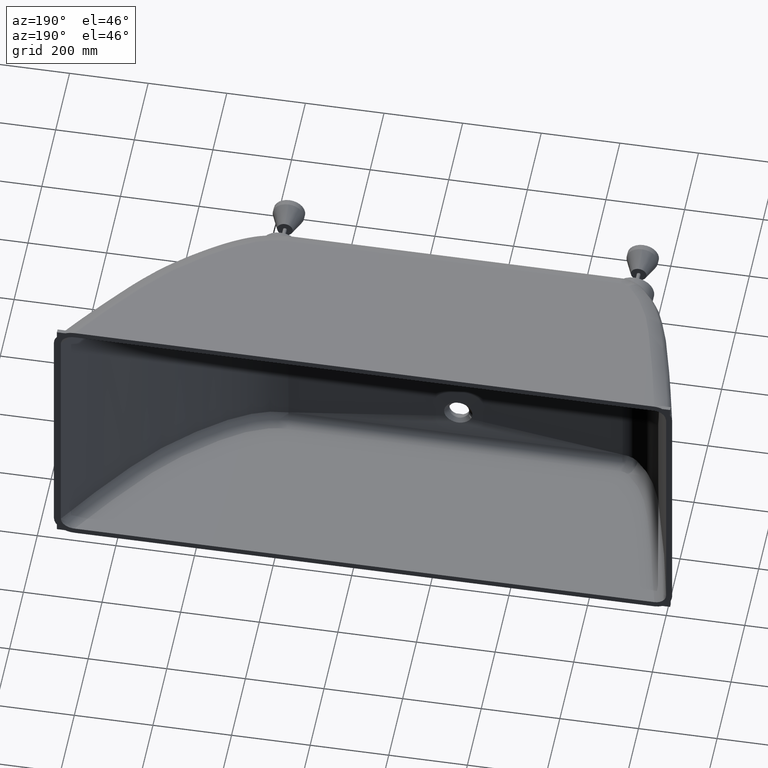
[diagram: clean part render]
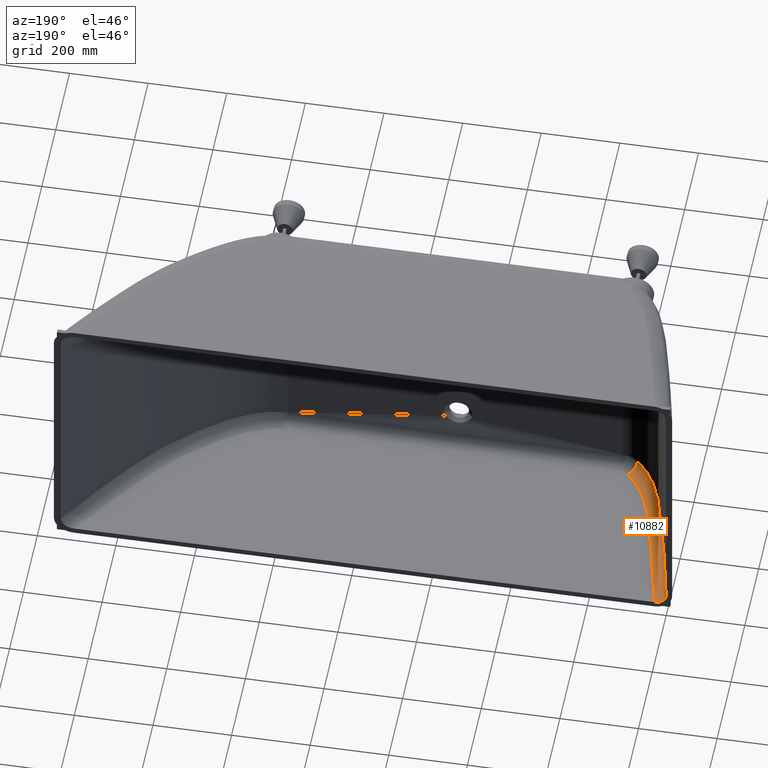
[diagram: same view with one face highlighted and labeled with its STEP entity id]
A machine part, auxiliary view. The second image highlights one B-rep face of the part: STEP entity #10882.
In plain terms, the highlighted face is a freeform B-spline surface patch.
Its self-contained STEP definition (entity closure, byte-faithful):
#12 = CARTESIAN_POINT ( 'NONE',  ( 29.06124112582564600, 6.949627220135910800, -0.2315507309366103500 ) ) ;
#93 = B_SPLINE_CURVE_WITH_KNOTS ( 'NONE', 3,
 ( #11761, #11773, #11728, #11719, #11706, #7785, #7612, #7523, #11695, #11679, #11667, #11649, #11640, #11619, #11607, #11583, #11567, #11539, #11523, #11492, #11476, #11453, #11438, #11417, #11398, #11348, #11321, #11300, #11255, #11233, #11214, #11181, #11161, #11133, #11117, #11093, #11072, #11050, #11036, #11009, #10995, #10953, #10926, #10909, #10893, #10877, #10859, #10840, #10822, #10812, #10795, #10771 ),
 .UNSPECIFIED., .F., .F.,
 ( 4, 2, 1, 2, 2, 2, 2, 2, 2, 2, 2, 2, 2, 2, 2, 2, 2, 2, 2, 2, 2, 2, 2, 1, 1, 1, 2, 4 ),
 ( -6.000000000020414300E-008, 0.003645714229937240200, 0.007291488459874480100, 0.01458303691974896700, 0.02916613383949794000, 0.05833232767899589100, 0.1166647153579917900, 0.1749971030369876200, 0.2041632968764856000, 0.2187463937962346200, 0.2333294907159835800, 0.2624956845554815000, 0.2916618783949795300, 0.3208280722344774600, 0.3281196206943519100, 0.3354111691542263600, 0.3499942660739753200, 0.4083266537529709500, 0.4229097506727199600, 0.4302012991325944700, 0.4374928475924690900, 0.4520759445122181600, 0.4593674929720927300, 0.4630132672020301200, 0.4648361543169987100, 0.4657475978744830500, 0.4662033196532251500, 0.4666590414319672400 ),
 .UNSPECIFIED. ) ;
#136 = ORIENTED_EDGE ( 'NONE', *, *, #3519, .T. ) ;
#139 = CARTESIAN_POINT ( 'NONE',  ( 29.16359142788229200, 6.369169812853092700, -0.2122107961924272500 ) ) ;
#504 = CARTESIAN_POINT ( 'NONE',  ( 6.286104489863160600, -2.331963371631408400E-014, 11.51206644044381000 ) ) ;
#542 = VERTEX_POINT ( 'NONE', #7703 ) ;
#1481 = CARTESIAN_POINT ( 'NONE',  ( 9.652136662136667800, -2.326655067058557400E-014, 7.956515564510484100 ) ) ;
#2171 = VERTEX_POINT ( 'NONE', #10638 ) ;
#2652 = CARTESIAN_POINT ( 'NONE',  ( 170.0829550049796800, -413.4335997468034000, 13.77496219332429400 ) ) ;
#2796 = CARTESIAN_POINT ( 'NONE',  ( 169.7615336672072000, -413.7905279511018600, 13.78685448394238500 ) ) ;
#2816 = CARTESIAN_POINT ( 'NONE',  ( 169.4340402407293900, -414.1537794874342400, 13.81071074918859100 ) ) ;
#2853 = CARTESIAN_POINT ( 'NONE',  ( 168.7844876258925500, -414.8733503187668800, 13.88186497782582600 ) ) ;
#2894 = CARTESIAN_POINT ( 'NONE',  ( 168.4605045897412200, -415.2318187508879500, 13.92916154082905100 ) ) ;
#2944 = CARTESIAN_POINT ( 'NONE',  ( 167.4909304415326700, -416.3032957328246700, 14.10605391662296500 ) ) ;
#3052 = CARTESIAN_POINT ( 'NONE',  ( 166.8477086622493700, -417.0123853744970600, 14.27056891212747700 ) ) ;
#3063 = CARTESIAN_POINT ( 'NONE',  ( 164.9276874093837400, -419.1238127535871200, 14.90561534658429500 ) ) ;
#3143 = CARTESIAN_POINT ( 'NONE',  ( 163.6915838983172200, -420.4762070688792100, 15.50621866368898900 ) ) ;
#3171 = B_SPLINE_CURVE_WITH_KNOTS ( 'NONE', 3,
 ( #9149, #9094, #10603, #10634, #10708, #11739, #11872, #11876, #11896, #11951, #10123, #5064, #1481, #11635, #504, #3566, #3569, #3576, #3595, #3608, #3613, #3626, #3645, #3659, #3662, #3671 ),
 .UNSPECIFIED., .F., .F.,
 ( 4, 2, 2, 2, 2, 2, 2, 2, 2, 2, 2, 2, 4 ),
 ( 0.0000000000000000000, 0.005873322736494580900, 0.008809984104741871300, 0.01174664547298916200, 0.01761996820948374300, 0.02055662957773103300, 0.02349329094597832300, 0.02936661368247290400, 0.03230327505072019800, 0.03523993641896747800, 0.03817659778721477200, 0.04111325915546205900, 0.04698658189195664700 ),
 .UNSPECIFIED. ) ;
#3219 = EDGE_CURVE ( 'NONE', #8986, #9749, #7212, .T. ) ;
#3224 = CARTESIAN_POINT ( 'NONE',  ( 161.9039288221237600, -422.4219915448069300, 16.66063932418334300 ) ) ;
#3350 = CARTESIAN_POINT ( 'NONE',  ( 161.3190188578675800, -423.0568915234407500, 17.08806642409510300 ) ) ;
#3519 = EDGE_CURVE ( 'NONE', #2171, #5766, #3727, .T. ) ;
#3547 = CARTESIAN_POINT ( 'NONE',  ( 160.1716216404392400, -424.2987570144589400, 18.02991570904437800 ) ) ;
#3566 = CARTESIAN_POINT ( 'NONE',  ( 4.615909835166254600, -2.334597304246820600E-014, 13.95331283943719900 ) ) ;
#3569 = CARTESIAN_POINT ( 'NONE',  ( 4.094456593670289900, -2.335419647137409800E-014, 14.80359034830803800 ) ) ;
#3576 = CARTESIAN_POINT ( 'NONE',  ( 3.148942615552957800, -2.336910742859868100E-014, 16.53400228089753900 ) ) ;
#3592 = CARTESIAN_POINT ( 'NONE',  ( 159.6068326375290400, -424.9081835730799000, 18.54709956161465100 ) ) ;
#3595 = CARTESIAN_POINT ( 'NONE',  ( 2.722057691625267200, -2.337583949495393600E-014, 17.41753869529055300 ) ) ;
#3608 = CARTESIAN_POINT ( 'NONE',  ( 1.958333018778263300, -2.338788359603731000E-014, 19.22059351883252300 ) ) ;
#3613 = CARTESIAN_POINT ( 'NONE',  ( 1.621494775912949400, -2.339319560701462500E-014, 20.14011252979970800 ) ) ;
#3626 = CARTESIAN_POINT ( 'NONE',  ( 1.038788170717474000, -2.340238501453860800E-014, 22.01550205823138400 ) ) ;
#3642 = CARTESIAN_POINT ( 'NONE',  ( 157.9806359027588800, -426.6572767642275000, 20.19970439477266000 ) ) ;
#3645 = CARTESIAN_POINT ( 'NONE',  ( 0.7925081411342592700, -2.340626890316573800E-014, 22.97338657141530000 ) ) ;
#3659 = CARTESIAN_POINT ( 'NONE',  ( 0.1981984350108744500, -2.341564129406766400E-014, 25.89077237915760300 ) ) ;
#3662 = CARTESIAN_POINT ( 'NONE',  ( 5.034763838479558800E-015, -2.341876692568689300E-014, 27.85650839598307400 ) ) ;
#3671 = CARTESIAN_POINT ( 'NONE',  ( 0.0000000000000000000, 0.0000000000000000000, 29.84307657021223300 ) ) ;
#3727 = B_SPLINE_CURVE_WITH_KNOTS ( 'NONE', 3,
 ( #9144, #9155, #9113, #9064, #9040, #9035, #9027, #9011, #8979, #8977, #8971, #8961, #8931, #8920, #8900, #8856, #8846, #8819, #8818, #8784, #8775, #8772, #8707, #8706, #8698, #8663, #8661, #8633, #8614, #8581, #8493, #8475 ),
 .UNSPECIFIED., .F., .F.,
 ( 4, 2, 2, 2, 2, 2, 2, 2, 2, 2, 2, 2, 2, 2, 2, 4 ),
 ( 0.0000000000000000000, 0.02787684080182919000, 0.04181526120274382100, 0.05575368160365845600, 0.08363052240548786400, 0.1115073632073173100, 0.1184765734077745700, 0.1254457836082318300, 0.1393842040091463300, 0.1672610448109753400, 0.1951378856128043700, 0.2230147264146333800, 0.2787684080182915000, 0.3345220896219496300, 0.3902757712256078000, 0.4460294528292658700 ),
 .UNSPECIFIED. ) ;
#3840 = CARTESIAN_POINT ( 'NONE',  ( 156.9773478818769400, -427.7287496483801300, 21.44115477892005500 ) ) ;
#3854 = CARTESIAN_POINT ( 'NONE',  ( -0.3131347968006043000, 1.775875680184824800, -0.05916940560618551300 ) ) ;
#3880 = CARTESIAN_POINT ( 'NONE',  ( 155.5919924557936200, -429.1962413260312700, 23.50982707201943000 ) ) ;
#3992 = CARTESIAN_POINT ( 'NONE',  ( 155.1502723575268300, -429.6619597638268100, 24.23403540401462700 ) ) ;
#4031 = CARTESIAN_POINT ( 'NONE',  ( 154.3083966070186600, -430.5448567269625100, 25.75420876705036100 ) ) ;
#4147 = CARTESIAN_POINT ( 'NONE',  ( 153.9149104221287100, -430.9550390684968300, 26.53818601449984600 ) ) ;
#4174 = FACE_OUTER_BOUND ( 'NONE', #9785, .T. ) ;
#4193 = CARTESIAN_POINT ( 'NONE',  ( 152.8153580235400900, -432.0935976542579100, 28.95675846439347400 ) ) ;
#4486 = CARTESIAN_POINT ( 'NONE',  ( 152.1888377953762600, -432.7314773747912700, 30.65853204821327100 ) ) ;
#4627 = CARTESIAN_POINT ( 'NONE',  ( 151.9874131354060000, -436.5299091140404400, 43.82186815271793300 ) ) ;
#4669 = CARTESIAN_POINT ( 'NONE',  ( 152.4727462673034800, -436.9715631458429900, 14.55921039213593800 ) ) ;
#4671 = ORIENTED_EDGE ( 'NONE', *, *, #11559, .T. ) ;
#4748 = CARTESIAN_POINT ( 'NONE',  ( 172.1786603896818200, -415.3407684392795400, 13.83850607715781100 ) ) ;
#4790 = CARTESIAN_POINT ( 'NONE',  ( 151.5509413270367800, -436.1327189754220500, 43.80863439720876300 ) ) ;
#4794 = CARTESIAN_POINT ( 'NONE',  ( 151.4110520776877400, -433.5041317080546700, 33.34710519630947100 ) ) ;
#4840 = CARTESIAN_POINT ( 'NONE',  ( 151.1783497194647100, -433.7313336944272900, 34.27020788598022000 ) ) ;
#4885 = CARTESIAN_POINT ( 'NONE',  ( 152.0362744588976500, -436.5743730072538800, 14.54597663658654300 ) ) ;
#4907 = CARTESIAN_POINT ( 'NONE',  ( 171.7421885812955500, -414.9435783006770200, 13.82527232173454300 ) ) ;
#4930 = CARTESIAN_POINT ( 'NONE',  ( 151.1144695186220000, -435.7355288367621700, 43.79540064186483800 ) ) ;
#4956 = CARTESIAN_POINT ( 'NONE',  ( 151.5998026505186000, -436.1771828685820700, 14.53274288127567400 ) ) ;
#4976 = CARTESIAN_POINT ( 'NONE',  ( 171.3057167728969400, -414.5463881620020700, 13.81203856630877200 ) ) ;
#4991 = CARTESIAN_POINT ( 'NONE',  ( 150.7774655683190900, -434.1139142733852600, 36.12513844624930200 ) ) ;
#5015 = CARTESIAN_POINT ( 'NONE',  ( 150.4597618060734900, -435.1397436288394300, 43.77555000873539400 ) ) ;
#5047 = CARTESIAN_POINT ( 'NONE',  ( 150.6079768366738600, -434.2706236693803700, 37.06051002936073500 ) ) ;
#5059 = CARTESIAN_POINT ( 'NONE',  ( 150.9450949379713900, -435.5813976606334600, 14.51289224815698400 ) ) ;
#5064 = CARTESIAN_POINT ( 'NONE',  ( 10.39076826083589600, -2.325490229263683500E-014, 7.302132984358698000 ) ) ;
#5105 = CARTESIAN_POINT ( 'NONE',  ( 170.6510090603497400, -413.9506029540781400, 13.79218793317319800 ) ) ;
#5149 = CARTESIAN_POINT ( 'NONE',  ( 150.2415259018700300, -434.9411485595131200, 43.76893313101865600 ) ) ;
#5175 = CARTESIAN_POINT ( 'NONE',  ( 150.1904458766551600, -434.6391722589438000, 39.88985062503888200 ) ) ;
#5187 = CARTESIAN_POINT ( 'NONE',  ( 150.7268590337648700, -435.3828025913268800, 14.50627537044125900 ) ) ;
#5234 = CARTESIAN_POINT ( 'NONE',  ( 170.4327731561431800, -413.7520078847550200, 13.78557105546080700 ) ) ;
#5289 = CARTESIAN_POINT ( 'NONE',  ( 150.0096502536690900, -434.7301412983677600, 43.76190269845198300 ) ) ;
#5331 = CARTESIAN_POINT ( 'NONE',  ( 150.4949833855667100, -435.1717953301698000, 14.49924493786968700 ) ) ;
#5370 = CARTESIAN_POINT ( 'NONE',  ( 170.2008975079450600, -413.5410006236066400, 13.77854062289167000 ) ) ;
#5415 = CARTESIAN_POINT ( 'NONE',  ( 149.9954076427923400, -434.7171817143710100, 43.76148916267801100 ) ) ;
#5432 = B_SPLINE_CURVE_WITH_KNOTS ( 'NONE', 3,
 ( #5530, #5857, #5175, #5047, #4991, #4840, #4794, #4486, #4193, #4147, #4031, #3992, #3880, #3840, #3642, #3592, #3547, #3350, #3224, #3143, #3063, #3052, #2944, #2894, #2853, #2816, #2796, #2652 ),
 .UNSPECIFIED., .F., .F.,
 ( 4, 2, 2, 2, 2, 2, 2, 2, 2, 2, 2, 2, 2, 4 ),
 ( 0.0000000000000000000, 0.005765559060602747600, 0.008648338590904126200, 0.01153111812120550600, 0.01729667718180818600, 0.02017945671210952600, 0.02306223624241086600, 0.02882779530301343000, 0.03171057483331470700, 0.03459335436361599100, 0.04035891342421871900, 0.04324169295452007900, 0.04468308271967076600, 0.04612447248482144700 ),
 .UNSPECIFIED. ) ;
#5462 = CARTESIAN_POINT ( 'NONE',  ( 150.4807435429180200, -435.1588623399030700, 14.49881403082204800 ) ) ;
#5503 = CARTESIAN_POINT ( 'NONE',  ( 170.1872572306511700, -413.5285890045322500, 13.77812708711803500 ) ) ;
#5530 = CARTESIAN_POINT ( 'NONE',  ( 150.0000478028066500, -434.7214023060798200, 43.75586204383505200 ) ) ;
#5547 = CARTESIAN_POINT ( 'NONE',  ( 149.9640132909633800, -434.6886059123588700, 43.76066194507462400 ) ) ;
#5571 = EDGE_CURVE ( 'NONE', #542, #8986, #93, .T. ) ;
#5592 = CARTESIAN_POINT ( 'NONE',  ( 150.4493681349540300, -435.1304685010741200, 14.49786799243337900 ) ) ;
#5635 = CARTESIAN_POINT ( 'NONE',  ( 170.1599807575837800, -413.5037613827278700, 13.77729986951425200 ) ) ;
#5682 = CARTESIAN_POINT ( 'NONE',  ( 149.9483180696488800, -434.6743157949036900, 43.76024827366556700 ) ) ;
#5766 = VERTEX_POINT ( 'NONE', #8337 ) ;
#5818 = CARTESIAN_POINT ( 'NONE',  ( 150.4336823609541500, -435.1162693707219100, 14.49739489957342700 ) ) ;
#5857 = CARTESIAN_POINT ( 'NONE',  ( 150.0324711045285000, -434.7504025263786500, 41.80682369694159200 ) ) ;
#5896 = CARTESIAN_POINT ( 'NONE',  ( 170.1463442705735400, -413.4913456927965900, 13.77688619810605700 ) ) ;
#5916 = CARTESIAN_POINT ( 'NONE',  ( 149.9012382710971600, -434.6314387938876400, 43.75900707161467600 ) ) ;
#5936 = CARTESIAN_POINT ( 'NONE',  ( 150.3866307827038000, -435.0736653042574700, 14.49597539858464200 ) ) ;
#5952 = CARTESIAN_POINT ( 'NONE',  ( 170.1054400583617200, -413.4540929856366300, 13.77564499605319500 ) ) ;
#5973 = CARTESIAN_POINT ( 'NONE',  ( 149.8698595592536000, -434.6028452616762400, 43.75817935313406100 ) ) ;
#5988 = CARTESIAN_POINT ( 'NONE',  ( 150.3552708177385900, -435.0452537791501300, 14.49502877090456500 ) ) ;
#6020 = CARTESIAN_POINT ( 'NONE',  ( 170.0781775819816100, -413.4292503310456900, 13.77481727758048900 ) ) ;
#6041 = CARTESIAN_POINT ( 'NONE',  ( 150.0000000000000900, -434.7213595499957800, 43.76161010430390500 ) ) ;
#6062 = CARTESIAN_POINT ( 'NONE',  ( 149.7757468980500700, -434.5170380760708300, 43.75569544635188600 ) ) ;
#6094 = CARTESIAN_POINT ( 'NONE',  ( 150.2612139104068900, -434.9599925070398300, 14.49218799843867000 ) ) ;
#6134 = CARTESIAN_POINT ( 'NONE',  ( 169.9964111501183200, -413.3546998156874700, 13.77233337077857000 ) ) ;
#6173 = CARTESIAN_POINT ( 'NONE',  ( 149.7130364230151500, -434.4597978336836400, 43.75403850662746700 ) ) ;
#6209 = CARTESIAN_POINT ( 'NONE',  ( 150.1985403377424300, -434.9031164088895000, 14.49029297561134700 ) ) ;
#6254 = CARTESIAN_POINT ( 'NONE',  ( 169.9419281919220500, -413.3049694033030600, 13.77067643106470900 ) ) ;
#6290 = CARTESIAN_POINT ( 'NONE',  ( 149.5249989969871600, -434.2879707961156400, 43.74906468137627500 ) ) ;
#6338 = CARTESIAN_POINT ( 'NONE',  ( 150.0106116701648800, -434.7323813665471400, 14.48460435049923800 ) ) ;
#6380 = CARTESIAN_POINT ( 'NONE',  ( 169.7785633222858900, -413.1556879427785700, 13.76570260582131100 ) ) ;
#6419 = CARTESIAN_POINT ( 'NONE',  ( 149.3997660451786900, -434.1732776902993000, 43.74574478976604300 ) ) ;
#6455 = CARTESIAN_POINT ( 'NONE',  ( 149.8854501544730300, -434.6184170568295700, 14.48080723763075300 ) ) ;
#6501 = CARTESIAN_POINT ( 'NONE',  ( 169.6697654158892300, -413.0560466711552900, 13.76238271418608200 ) ) ;
#6543 = CARTESIAN_POINT ( 'NONE',  ( 148.2737998993420400, -433.1397651283069800, 43.71582967829970600 ) ) ;
#6576 = CARTESIAN_POINT ( 'NONE',  ( 148.7600483771726700, -433.5914079436680600, 14.44658889681006800 ) ) ;
#6626 = CARTESIAN_POINT ( 'NONE',  ( 168.6915926902206300, -412.1581921454481400, 13.73246760289784700 ) ) ;
#6706 = CARTESIAN_POINT ( 'NONE',  ( 147.2809802780765300, -432.2120221775985000, 43.68898183832284600 ) ) ;
#6749 = CARTESIAN_POINT ( 'NONE',  ( 147.7676859055033000, -432.6695164221818600, 14.41587291054693800 ) ) ;
#6807 = CARTESIAN_POINT ( 'NONE',  ( 167.8292773008952600, -411.3523968899523900, 13.70561976279338400 ) ) ;
#6827 = CARTESIAN_POINT ( 'NONE',  ( 144.3270412102431800, -429.4018139999286100, 43.60766645269281800 ) ) ;
#6843 = CARTESIAN_POINT ( 'NONE',  ( 144.8146139071379300, -429.8767240494540800, 14.32282142824772800 ) ) ;
#6870 = CARTESIAN_POINT ( 'NONE',  ( 165.2639007593391500, -408.9118448098888600, 13.62430437707170200 ) ) ;
#6890 = CARTESIAN_POINT ( 'NONE',  ( 142.3904516984889300, -427.4923550470000500, 43.55242684886371800 ) ) ;
#6907 = CARTESIAN_POINT ( 'NONE',  ( 142.8783211392011500, -427.9790346134603900, 14.25959337848786400 ) ) ;
#6926 = CARTESIAN_POINT ( 'NONE',  ( 163.5824146262972400, -407.2539158840709800, 13.56906477321181200 ) ) ;
#6965 = CARTESIAN_POINT ( 'NONE',  ( 136.6816905823084800, -421.6582756466505100, 43.38361085329747600 ) ) ;
#7006 = CARTESIAN_POINT ( 'NONE',  ( 137.1684153823855800, -422.1794939926965100, 14.06636173739145700 ) ) ;
#7046 = CARTESIAN_POINT ( 'NONE',  ( 158.6245064205612600, -402.1871720594194800, 13.40024877792121000 ) ) ;
#7080 = CARTESIAN_POINT ( 'NONE',  ( 133.0107497447865500, -417.6277584377739900, 43.26693381509056700 ) ) ;
#7119 = CARTESIAN_POINT ( 'NONE',  ( 133.4955919155623000, -418.1723696380551600, 13.93285060904783100 ) ) ;
#7155 = CARTESIAN_POINT ( 'NONE',  ( 155.4347313239157700, -398.6852961701400800, 13.28357173955224500 ) ) ;
#7212 = B_SPLINE_CURVE_WITH_KNOTS ( 'NONE', 3,
 ( #10800, #12274, #10863, #10759 ),
 .UNSPECIFIED., .F., .F.,
 ( 4, 4 ),
 ( 0.0000000000000000000, 5.748418247191801800E-006 ),
 .UNSPECIFIED. ) ;
#7230 = CARTESIAN_POINT ( 'NONE',  ( 128.5975181535105800, -412.4239471869024100, 43.11593953849470000 ) ) ;
#7268 = CARTESIAN_POINT ( 'NONE',  ( 129.0789895077647000, -412.9984422831478200, 13.76046342590999000 ) ) ;
#7317 = CARTESIAN_POINT ( 'NONE',  ( 151.5913717146354100, -394.1534429099023100, 13.13257746292910400 ) ) ;
#7369 = CARTESIAN_POINT ( 'NONE',  ( 127.7228480203750100, -411.3739580482043700, 43.08545568974827900 ) ) ;
#7416 = CARTESIAN_POINT ( 'NONE',  ( 128.2033548965410400, -411.9541740228228800, 13.72567003747822200 ) ) ;
#7459 = CARTESIAN_POINT ( 'NONE',  ( 150.8292058830279000, -393.2385186341744000, 13.10209361421519800 ) ) ;
#7501 = CARTESIAN_POINT ( 'NONE',  ( 125.9951917215555100, -409.2627767413661100, 43.02412081162923800 ) ) ;
#7523 = CARTESIAN_POINT ( 'NONE',  ( 4.425760403496681800, -23.90350525926713800, 30.62258370026817600 ) ) ;
#7549 = CARTESIAN_POINT ( 'NONE',  ( 126.4735859156730100, -409.8543307436406200, 13.65570653724445000 ) ) ;
#7552 = ORIENTED_EDGE ( 'NONE', *, *, #8013, .T. ) ;
#7593 = CARTESIAN_POINT ( 'NONE',  ( 149.3227560405254600, -391.3976497361483100, 13.04075873604200300 ) ) ;
#7612 = CARTESIAN_POINT ( 'NONE',  ( 3.506541612683680100, -19.13044424757832800, 30.46666466771700900 ) ) ;
#7642 = CARTESIAN_POINT ( 'NONE',  ( 125.1426268640700000, -408.2021417614108700, 42.99328600329896200 ) ) ;
#7692 = CARTESIAN_POINT ( 'NONE',  ( 125.6198762624969600, -408.7993078510064000, 13.62055482126618100 ) ) ;
#7703 = CARTESIAN_POINT ( 'NONE',  ( 0.0000000000000000000, 0.0000000000000000000, 29.84307657021223300 ) ) ;
#7735 = CARTESIAN_POINT ( 'NONE',  ( 148.5788403687071500, -390.4721919661477000, 13.00992392774120700 ) ) ;
#7764 = CARTESIAN_POINT ( 'NONE',  ( -0.4829914645406094300, 2.739180711879734900, 29.75181134462356900 ) ) ;
#7775 = CARTESIAN_POINT ( 'NONE',  ( 122.6182181266290700, -405.0058301908065900, 42.90028992542099200 ) ) ;
#7785 = CARTESIAN_POINT ( 'NONE',  ( 2.163596800363385400, -11.96280522997464100, 30.23280552460837700 ) ) ;
#7794 = CARTESIAN_POINT ( 'NONE',  ( 123.0915884168384500, -405.6194153769765200, 13.51460576769257400 ) ) ;
#7819 = CARTESIAN_POINT ( 'NONE',  ( 146.3744396013056000, -387.6810624731711500, 12.91692784985597500 ) ) ;
#7842 = CARTESIAN_POINT ( 'NONE',  ( 120.9796711880714100, -402.8557512691676300, 42.83763698171323900 ) ) ;
#7871 = CARTESIAN_POINT ( 'NONE',  ( 121.4502545682053000, -403.4801867211931500, 13.44333000821329800 ) ) ;
#7893 = CARTESIAN_POINT ( 'NONE',  ( 144.9413019328690100, -385.8006339317054800, 12.85427490611442100 ) ) ;
#7915 = CARTESIAN_POINT ( 'NONE',  ( 116.1927521132662500, -396.3535929321226400, 42.64779603556353700 ) ) ;
#7932 = CARTESIAN_POINT ( 'NONE',  ( 116.6533566105505300, -397.0087860900407600, 13.22771304044309900 ) ) ;
#7973 = CARTESIAN_POINT ( 'NONE',  ( 140.7465741035819100, -380.1028596223151200, 12.66443396008097000 ) ) ;
#8013 = EDGE_CURVE ( 'NONE', #9749, #2171, #5432, .T. ) ;
#8021 = CARTESIAN_POINT ( 'NONE',  ( 113.1732322976593800, -391.9497018591610500, 42.51872582001263400 ) ) ;
#8062 = CARTESIAN_POINT ( 'NONE',  ( 113.6266097387249800, -392.6248847109191600, 13.08164828981160700 ) ) ;
#8130 = CARTESIAN_POINT ( 'NONE',  ( 138.0896746069335000, -376.2290222088979600, 12.53536374434205300 ) ) ;
#8164 = CARTESIAN_POINT ( 'NONE',  ( 104.5886567319862800, -378.5730721681357000, 42.12467129984600700 ) ) ;
#8318 = CARTESIAN_POINT ( 'NONE',  ( 105.0152689733658500, -379.3004343716417600, 12.63769840314409800 ) ) ;
#8337 = CARTESIAN_POINT ( 'NONE',  ( 30.29392354184872400, -2.294102528616424400E-014, -5.551115123125782700E-014 ) ) ;
#8363 = CARTESIAN_POINT ( 'NONE',  ( 130.4996394098693600, -364.4021020079114800, 12.14130922450663700 ) ) ;
#8410 = CARTESIAN_POINT ( 'NONE',  ( 99.49804644923683800, -369.4374483509333800, 41.85284736500954500 ) ) ;
#8453 = CARTESIAN_POINT ( 'NONE',  ( 99.90647075925393500, -370.1971901585326300, 12.33439251597921800 ) ) ;
#8475 = CARTESIAN_POINT ( 'NONE',  ( 30.29392354184872400, -2.294102528616424400E-014, -5.551115123125782700E-014 ) ) ;
#8493 = CARTESIAN_POINT ( 'NONE',  ( 33.55705571827626000, -18.15227638909220800, 0.6048055144420554400 ) ) ;
#8499 = CARTESIAN_POINT ( 'NONE',  ( 125.9469310767662800, -356.2437385642641600, 11.86948528938273000 ) ) ;
#8528 = CARTESIAN_POINT ( 'NONE',  ( 150.0000478028066500, -434.7214023060798200, 43.75586204383505200 ) ) ;
#8541 = CARTESIAN_POINT ( 'NONE',  ( 90.32881909505324800, -350.9108421686910300, 41.29458576594053200 ) ) ;
#8581 = CARTESIAN_POINT ( 'NONE',  ( 37.19730185503510000, -36.21962981217173900, 1.206781528217381000 ) ) ;
#8591 = CARTESIAN_POINT ( 'NONE',  ( 90.69866604859389300, -351.7236763951744900, 11.71888387335963500 ) ) ;
#8614 = CARTESIAN_POINT ( 'NONE',  ( 44.94547423594675500, -72.24901893996737100, 2.407224533788056700 ) ) ;
#8633 = CARTESIAN_POINT ( 'NONE',  ( 49.05502739839046500, -90.21068827604902700, 3.005679318752410900 ) ) ;
#8661 = CARTESIAN_POINT ( 'NONE',  ( 57.53024000792692000, -126.0763539167291600, 4.200667313296994700 ) ) ;
#8663 = CARTESIAN_POINT ( 'NONE',  ( 61.89680635260607000, -143.9801459954410300, 4.797193718389431500 ) ) ;
#8681 = CARTESIAN_POINT ( 'NONE',  ( 117.6543451588265600, -339.4884038338178700, 11.31122369044702900 ) ) ;
#8698 = CARTESIAN_POINT ( 'NONE',  ( 70.70801040548916200, -179.7701491231268800, 5.989660756106640200 ) ) ;
#8706 = CARTESIAN_POINT ( 'NONE',  ( 75.15255013520874200, -197.6558986027218300, 6.585586009960160000 ) ) ;
#8707 = CARTESIAN_POINT ( 'NONE',  ( 81.75573005158818800, -224.5011187475766400, 7.480026841071406800 ) ) ;
#8713 = CARTESIAN_POINT ( 'NONE',  ( 86.24887340509246800, -341.5192179452458300, 41.00815158736730100 ) ) ;
#8755 = CARTESIAN_POINT ( 'NONE',  ( 86.60016939760828300, -342.3542776126704400, 11.40671013106954800 ) ) ;
#8770 = CARTESIAN_POINT ( 'NONE',  ( 113.9142737134679500, -330.8915371525276300, 11.02478951192758500 ) ) ;
#8772 = CARTESIAN_POINT ( 'NONE',  ( 83.95040607358063800, -233.4512605852101200, 7.778231596354528300 ) ) ;
#8775 = CARTESIAN_POINT ( 'NONE',  ( 88.46437369762682600, -251.3176744283315100, 8.373512616982768700 ) ) ;
#8784 = CARTESIAN_POINT ( 'NONE',  ( 90.78344672331289200, -260.2340058416791600, 8.670590861704827300 ) ) ;
#8791 = CARTESIAN_POINT ( 'NONE',  ( 81.62225295166729200, -329.6975602260139900, 40.64314088134401000 ) ) ;
#8802 = CARTESIAN_POINT ( 'NONE',  ( 81.95271201551271600, -330.5575740462894600, 11.01366238257728200 ) ) ;
#8818 = CARTESIAN_POINT ( 'NONE',  ( 95.69694417730535500, -277.9918296652327900, 9.262253832384940800 ) ) ;
#8819 = CARTESIAN_POINT ( 'NONE',  ( 98.29105928379685500, -286.8334061474138800, 9.556841359489876500 ) ) ;
#8824 = CARTESIAN_POINT ( 'NONE',  ( 109.6267508499631400, -319.9363208636070800, 10.65977880575374900 ) ) ;
#8841 = CARTESIAN_POINT ( 'NONE',  ( 80.72064259502334900, -327.3290179940487400, 40.56978981346682600 ) ) ;
#8846 = CARTESIAN_POINT ( 'NONE',  ( 102.5178848906473800, -300.0045422380201800, 9.995683054510173800 ) ) ;
#8856 = CARTESIAN_POINT ( 'NONE',  ( 103.9829652250311900, -304.3796628074526300, 10.14145524252808200 ) ) ;
#8877 = CARTESIAN_POINT ( 'NONE',  ( 81.04677662355929600, -328.1931133375342700, 10.93488224267397200 ) ) ;
#8900 = CARTESIAN_POINT ( 'NONE',  ( 106.2831570954578400, -310.9144653253275100, 10.35918466190690500 ) ) ;
#8920 = CARTESIAN_POINT ( 'NONE',  ( 107.0670284401138200, -313.0880644165196700, 10.43160559074029200 ) ) ;
#8925 = CARTESIAN_POINT ( 'NONE',  ( 108.7886539427864400, -317.7348051249188600, 10.58642773780234100 ) ) ;
#8931 = CARTESIAN_POINT ( 'NONE',  ( 108.6681158606072200, -317.4141826271153400, 10.57574509665201000 ) ) ;
#8961 = CARTESIAN_POINT ( 'NONE',  ( 109.4857824423741300, -319.5680021387947200, 10.64750700077105700 ) ) ;
#8965 = CARTESIAN_POINT ( 'NONE',  ( 78.96113639772028100, -322.5851003319543200, 40.42244169255415200 ) ) ;
#8971 = CARTESIAN_POINT ( 'NONE',  ( 113.6664678891066700, -330.2872657707503700, 11.00465613272573300 ) ) ;
#8977 = CARTESIAN_POINT ( 'NONE',  ( 117.3061130173140600, -338.7034408707276000, 11.28506994980683800 ) ) ;
#8979 = CARTESIAN_POINT ( 'NONE',  ( 125.3551514525183300, -355.1204308110352500, 11.83205842847528400 ) ) ;
#8986 = VERTEX_POINT ( 'NONE', #6041 ) ;
#8998 = CARTESIAN_POINT ( 'NONE',  ( 79.27882624258768400, -323.4568625669563700, 10.77707775976043600 ) ) ;
#9011 = CARTESIAN_POINT ( 'NONE',  ( 129.7647097186645100, -363.1211566385210900, 12.09863012429352300 ) ) ;
#9027 = CARTESIAN_POINT ( 'NONE',  ( 137.0979250089257800, -374.7343350011289000, 12.48556309971503500 ) ) ;
#9035 = CARTESIAN_POINT ( 'NONE',  ( 139.6621998100053500, -378.5407121178029700, 12.61238564366871500 ) ) ;
#9040 = CARTESIAN_POINT ( 'NONE',  ( 145.0542609415757900, -386.0112741118029500, 12.86129310811586800 ) ) ;
#9064 = CARTESIAN_POINT ( 'NONE',  ( 147.8832680315087500, -389.6769024984143400, 12.98342612408572400 ) ) ;
#9070 = CARTESIAN_POINT ( 'NONE',  ( 107.1483904735040700, -313.3123854403046400, 10.43907961709835800 ) ) ;
#9094 = CARTESIAN_POINT ( 'NONE',  ( 28.30826374266756700, -2.297233956497281900E-014, -5.525365321529250100E-014 ) ) ;
#9107 = CARTESIAN_POINT ( 'NONE',  ( 78.10274133908576700, -320.2082880047202000, 40.34839969810255400 ) ) ;
#9113 = CARTESIAN_POINT ( 'NONE',  ( 156.7933275709147600, -400.4326769395718200, 13.34179173921135600 ) ) ;
#9144 = CARTESIAN_POINT ( 'NONE',  ( 170.0829550049796800, -413.4335997468034000, 13.77496219332429400 ) ) ;
#9149 = CARTESIAN_POINT ( 'NONE',  ( 30.29392354184872400, -2.294102528616424400E-014, -5.551115123125782700E-014 ) ) ;
#9151 = CARTESIAN_POINT ( 'NONE',  ( 78.41632968955764200, -321.0836691922158400, 10.69800666091805800 ) ) ;
#9155 = CARTESIAN_POINT ( 'NONE',  ( 163.1993184981504600, -407.1601960564297000, 13.56594217484664500 ) ) ;
#9191 = CARTESIAN_POINT ( 'NONE',  ( 106.3457552263940300, -311.0901326410735800, 10.36503762265909500 ) ) ;
#9229 = CARTESIAN_POINT ( 'NONE',  ( 75.59197103818466700, -313.0819958217843500, 40.12576193368255400 ) ) ;
#9270 = CARTESIAN_POINT ( 'NONE',  ( 75.89342032969510400, -313.9669497114387600, 10.46088867724586400 ) ) ;
#9320 = CARTESIAN_POINT ( 'NONE',  ( 103.9914783093438900, -304.4080139363773000, 10.14239985788896300 ) ) ;
#9369 = CARTESIAN_POINT ( 'NONE',  ( 74.00409362746026400, -308.3377002929937000, 39.97668803844874200 ) ) ;
#9398 = CARTESIAN_POINT ( 'NONE',  ( 74.29819064878653000, -309.2286811999756500, 10.30301696649162200 ) ) ;
#9438 = CARTESIAN_POINT ( 'NONE',  ( 102.4935963197326200, -299.9337978735397900, 9.993325962714294500 ) ) ;
#9484 = CARTESIAN_POINT ( 'NONE',  ( 69.45025679318811700, -294.1316356767742900, 39.52787583746606300 ) ) ;
#9587 = CARTESIAN_POINT ( 'NONE',  ( 69.72324863845936700, -295.0362347381401900, 9.830146803481406800 ) ) ;
#9624 = CARTESIAN_POINT ( 'NONE',  ( 98.17558588608844200, -286.4634129067978800, 9.544513762254457100 ) ) ;
#9662 = CARTESIAN_POINT ( 'NONE',  ( 66.69269207601215000, -284.6968351285161700, 39.22655472542987100 ) ) ;
#9723 = CARTESIAN_POINT ( 'NONE',  ( 66.95479497825945700, -285.6099456642024800, 9.516077566273706300 ) ) ;
#9749 = VERTEX_POINT ( 'NONE', #8528 ) ;
#9775 = CARTESIAN_POINT ( 'NONE',  ( 95.53024186237793500, -277.4197385562124500, 9.243192649639759400 ) ) ;
#9785 = EDGE_LOOP ( 'NONE', ( #4671, #9846, #12488, #7552, #136 ) ) ;
#9802 = CARTESIAN_POINT ( 'NONE',  ( 61.51790030153624400, -265.9290700255838800, 38.62135563508088200 ) ) ;
#9822 = CARTESIAN_POINT ( 'NONE',  ( 61.76242279305873200, -266.8533843012431800, 8.891138219121380400 ) ) ;
#9846 = ORIENTED_EDGE ( 'NONE', *, *, #5571, .T. ) ;
#9867 = CARTESIAN_POINT ( 'NONE',  ( 90.52190030031829300, -259.2556496255319900, 8.637993559750745100 ) ) ;
#9947 = CARTESIAN_POINT ( 'NONE',  ( 59.10119146496359800, -256.5959001397832800, 38.31747455687319400 ) ) ;
#9993 = CARTESIAN_POINT ( 'NONE',  ( 59.33966125278064400, -257.5247796342432000, 8.580323673471111700 ) ) ;
#10034 = CARTESIAN_POINT ( 'NONE',  ( 88.15924520235002100, -250.1351419730574200, 8.334112481449979600 ) ) ;
#10065 = CARTESIAN_POINT ( 'NONE',  ( 54.43159503355045800, -238.0581876127606300, 37.70860676350739000 ) ) ;
#10110 = CARTESIAN_POINT ( 'NONE',  ( 54.66222795209655800, -238.9915896480755200, 7.962826712513899200 ) ) ;
#10123 = CARTESIAN_POINT ( 'NONE',  ( 11.94047385545496800, -2.323046310467466800E-014, 6.060968656699275300 ) ) ;
#10153 = CARTESIAN_POINT ( 'NONE',  ( 83.55602700853373200, -231.8609427294207700, 7.725244687810240800 ) ) ;
#10199 = CARTESIAN_POINT ( 'NONE',  ( 52.17947414174965800, -228.8552932627027600, 37.40361794349539800 ) ) ;
#10245 = CARTESIAN_POINT ( 'NONE',  ( 52.40882857918830200, -229.7902893805481900, 7.656253750382652400 ) ) ;
#10301 = CARTESIAN_POINT ( 'NONE',  ( 81.31569631348993700, -222.7071879742189300, 7.420255867944192100 ) ) ;
#10345 = CARTESIAN_POINT ( 'NONE',  ( 45.43971348097586100, -201.4713257498726200, 36.48897226901947700 ) ) ;
#10386 = CARTESIAN_POINT ( 'NONE',  ( 45.67117375930030900, -202.4055237795208200, 6.743836106981917500 ) ) ;
#10463 = CARTESIAN_POINT ( 'NONE',  ( 74.55928093782100100, -195.2555515635076800, 6.505610193441638600 ) ) ;
#10500 = CARTESIAN_POINT ( 'NONE',  ( 40.89251304237712500, -183.1795249873234200, 35.87957424638953800 ) ) ;
#10540 = CARTESIAN_POINT ( 'NONE',  ( 41.12368807247000300, -184.1127964559524600, 6.134350987346220300 ) ) ;
#10584 = CARTESIAN_POINT ( 'NONE',  ( 70.01250646060020700, -176.9654383240056700, 5.896212170300430000 ) ) ;
#10603 = CARTESIAN_POINT ( 'NONE',  ( 26.35466182405065500, -2.300314828416315800E-014, 0.1892650792044177900 ) ) ;
#10634 = CARTESIAN_POINT ( 'NONE',  ( 23.47063503136312300, -2.304863000218699800E-014, 0.7469603818017167600 ) ) ;
#10638 = CARTESIAN_POINT ( 'NONE',  ( 170.0829550049796800, -413.4335997468034000, 13.77496219332429400 ) ) ;
#10670 = CARTESIAN_POINT ( 'NONE',  ( 31.86789127269872100, -146.4780220157657000, 34.66004896355557500 ) ) ;
#10704 = CARTESIAN_POINT ( 'NONE',  ( 32.09609565933911300, -147.4129638478589800, 4.911569849989744400 ) ) ;
#10708 = CARTESIAN_POINT ( 'NONE',  ( 22.51707749537174800, -2.306366780803589000E-014, 0.9788187229123191900 ) ) ;
#10723 = CARTESIAN_POINT ( 'NONE',  ( 61.01232385310209600, -140.3633250005110000, 4.676686888524365300 ) ) ;
#10747 = CARTESIAN_POINT ( 'NONE',  ( 27.38985993492581300, -128.0690671807819600, 34.04994334609500600 ) ) ;
#10759 = CARTESIAN_POINT ( 'NONE',  ( 150.0000478028066500, -434.7214023060798200, 43.75586204383505200 ) ) ;
#10766 = CARTESIAN_POINT ( 'NONE',  ( 27.61490472002928300, -129.0045965532348800, 4.298231787785242700 ) ) ;
#10771 = CARTESIAN_POINT ( 'NONE',  ( 150.0000000000000900, -434.7213595499957800, 43.76161010430390500 ) ) ;
#10786 = CARTESIAN_POINT ( 'NONE',  ( 56.55832081084565000, -122.0519744092343200, 4.066581269972811400 ) ) ;
#10795 = CARTESIAN_POINT ( 'NONE',  ( 149.8876700163427800, -434.6191390336394400, 43.75865099621351100 ) ) ;
#10800 = CARTESIAN_POINT ( 'NONE',  ( 150.0000000000000900, -434.7213595499957800, 43.76161010430390500 ) ) ;
#10807 = CARTESIAN_POINT ( 'NONE',  ( 18.69638036489783400, -91.07672007716186600, 32.82760104983940200 ) ) ;
#10812 = CARTESIAN_POINT ( 'NONE',  ( 149.7732429709554700, -434.5148016609314300, 43.75563069036690000 ) ) ;
#10822 = CARTESIAN_POINT ( 'NONE',  ( 149.5468215866383700, -434.3079234956275100, 43.74964224190718200 ) ) ;
#10840 = CARTESIAN_POINT ( 'NONE',  ( 149.2075255824720200, -433.9972863769692100, 43.74065054268344000 ) ) ;
#10850 = CARTESIAN_POINT ( 'NONE',  ( 18.91220814795400400, -92.01718791121473400, 3.065869066048072100 ) ) ;
#10859 = CARTESIAN_POINT ( 'NONE',  ( 148.4181872211152600, -433.2702275227212000, 43.71960665158841400 ) ) ;
#10863 = CARTESIAN_POINT ( 'NONE',  ( 150.0000159347351600, -434.7213738024714200, 43.75777770618280700 ) ) ;
#10877 = CARTESIAN_POINT ( 'NONE',  ( 146.8489180414374600, -431.8071558242767800, 43.67726523538487300 ) ) ;
#10882 = ADVANCED_FACE ( 'NONE', ( #4174 ), #11245, .F. ) ;
#10887 = CARTESIAN_POINT ( 'NONE',  ( 47.93667965413098400, -85.36531290653428500, 2.844238974841321700 ) ) ;
#10893 = CARTESIAN_POINT ( 'NONE',  ( 145.5199509016409500, -430.5377509115426200, 43.64053572935024100 ) ) ;
#10909 = CARTESIAN_POINT ( 'NONE',  ( 142.8834858960914300, -427.9785071515885900, 43.56648854622165600 ) ) ;
#10926 = CARTESIAN_POINT ( 'NONE',  ( 141.1544713192482700, -426.2450964814239600, 43.51633957403213800 ) ) ;
#10932 = CARTESIAN_POINT ( 'NONE',  ( 14.47980687554676200, -72.49384375758505400, 32.21537222894702500 ) ) ;
#10953 = CARTESIAN_POINT ( 'NONE',  ( 136.0530060647489600, -420.9634145618232400, 43.36349258376547800 ) ) ;
#10978 = CARTESIAN_POINT ( 'NONE',  ( 14.68910008308076900, -73.43629349142708000, 2.446782668899692300 ) ) ;
#10995 = CARTESIAN_POINT ( 'NONE',  ( 132.7661880125202200, -417.3336418248412100, 43.25839440194194200 ) ) ;
#11009 = CARTESIAN_POINT ( 'NONE',  ( 128.0050454702590900, -411.7280627198957200, 43.09575020032818300 ) ) ;
#11015 = CARTESIAN_POINT ( 'NONE',  ( 43.76798601945721900, -66.99023774809590700, 2.232010153182932400 ) ) ;
#11036 = CARTESIAN_POINT ( 'NONE',  ( 126.4451266494977800, -409.8312639791276400, 43.04065980767202900 ) ) ;
#11050 = CARTESIAN_POINT ( 'NONE',  ( 123.3972851243396300, -406.0055169206402200, 42.92939223319327600 ) ) ;
#11055 = CARTESIAN_POINT ( 'NONE',  ( 8.527449801479665600, -44.42584314439832800, 31.29413106125831900 ) ) ;
#11072 = CARTESIAN_POINT ( 'NONE',  ( 121.9072981922149400, -404.0742359639293100, 42.87314742910851400 ) ) ;
#11093 = CARTESIAN_POINT ( 'NONE',  ( 117.5355430764257700, -398.2271234785063100, 42.70257420476774300 ) ) ;
#11100 = CARTESIAN_POINT ( 'NONE',  ( 8.724366692395825900, -45.37662888058348200, 1.511878443367532500 ) ) ;
#11117 = CARTESIAN_POINT ( 'NONE',  ( 114.7519876547627300, -394.2580185362886600, 42.58640540953943100 ) ) ;
#11133 = CARTESIAN_POINT ( 'NONE',  ( 101.4405569916546200, -374.0836214032792700, 41.99329197226033000 ) ) ;
#11144 = CARTESIAN_POINT ( 'NONE',  ( 37.90436100380937700, -39.34064809981490600, 1.310768985800169200 ) ) ;
#11161 = CARTESIAN_POINT ( 'NONE',  ( 92.73333704621266800, -356.8908540282119500, 41.47888845064027700 ) ) ;
#11181 = CARTESIAN_POINT ( 'NONE',  ( 83.48371104608321500, -334.5137471752820500, 40.79203281330622100 ) ) ;
#11192 = CARTESIAN_POINT ( 'NONE',  ( 6.605833867706961900, -35.03731321774199600, 30.98656468131475700 ) ) ;
#11214 = CARTESIAN_POINT ( 'NONE',  ( 81.71541522311879600, -329.9940664232198600, 40.65250836027163200 ) ) ;
#11233 = CARTESIAN_POINT ( 'NONE',  ( 79.17032424385288900, -323.1563441223139000, 40.44020985851270200 ) ) ;
#11239 = CARTESIAN_POINT ( 'NONE',  ( 6.797870857375973400, -35.99015299830888600, 1.199135719978664300 ) ) ;
#11245 =( BOUNDED_SURFACE ( )  B_SPLINE_SURFACE ( 3, 2, ( 
 ( #12, #3854, #7764 ),
 ( #139, #12876, #12843 ),
 ( #12818, #12790, #12778 ),
 ( #12753, #12709, #12690 ),
 ( #12661, #12632, #12593 ),
 ( #12552, #12507, #12461 ),
 ( #12418, #12375, #12323 ),
 ( #12270, #12219, #12171 ),
 ( #12131, #12084, #12042 ),
 ( #11995, #11946, #11906 ),
 ( #11873, #11834, #11793 ),
 ( #11779, #11757, #11737 ),
 ( #11717, #11701, #11660 ),
 ( #11625, #11592, #11502 ),
 ( #11461, #11420, #11331 ),
 ( #11281, #11239, #11192 ),
 ( #11144, #11100, #11055 ),
 ( #11015, #10978, #10932 ),
 ( #10887, #10850, #10807 ),
 ( #10786, #10766, #10747 ),
 ( #10723, #10704, #10670 ),
 ( #10584, #10540, #10500 ),
 ( #10463, #10386, #10345 ),
 ( #10301, #10245, #10199 ),
 ( #10153, #10110, #10065 ),
 ( #10034, #9993, #9947 ),
 ( #9867, #9822, #9802 ),
 ( #9775, #9723, #9662 ),
 ( #9624, #9587, #9484 ),
 ( #9438, #9398, #9369 ),
 ( #9320, #9270, #9229 ),
 ( #9191, #9151, #9107 ),
 ( #9070, #8998, #8965 ),
 ( #8925, #8877, #8841 ),
 ( #8824, #8802, #8791 ),
 ( #8770, #8755, #8713 ),
 ( #8681, #8591, #8541 ),
 ( #8499, #8453, #8410 ),
 ( #8363, #8318, #8164 ),
 ( #8130, #8062, #8021 ),
 ( #7973, #7932, #7915 ),
 ( #7893, #7871, #7842 ),
 ( #7819, #7794, #7775 ),
 ( #7735, #7692, #7642 ),
 ( #7593, #7549, #7501 ),
 ( #7459, #7416, #7369 ),
 ( #7317, #7268, #7230 ),
 ( #7155, #7119, #7080 ),
 ( #7046, #7006, #6965 ),
 ( #6926, #6907, #6890 ),
 ( #6870, #6843, #6827 ),
 ( #6807, #6749, #6706 ),
 ( #6626, #6576, #6543 ),
 ( #6501, #6455, #6419 ),
 ( #6380, #6338, #6290 ),
 ( #6254, #6209, #6173 ),
 ( #6134, #6094, #6062 ),
 ( #6020, #5988, #5973 ),
 ( #5952, #5936, #5916 ),
 ( #5896, #5818, #5682 ),
 ( #5635, #5592, #5547 ),
 ( #5503, #5462, #5415 ),
 ( #5370, #5331, #5289 ),
 ( #5234, #5187, #5149 ),
 ( #5105, #5059, #5015 ),
 ( #4976, #4956, #4930 ),
 ( #4907, #4885, #4790 ),
 ( #4748, #4669, #4627 ) ),
 .UNSPECIFIED., .F., .F., .T. ) 
 B_SPLINE_SURFACE_WITH_KNOTS ( ( 4, 2, 2, 2, 2, 2, 2, 2, 2, 2, 2, 2, 2, 2, 2, 2, 2, 2, 2, 2, 2, 2, 2, 2, 2, 2, 2, 2, 2, 2, 2, 2, 2, 4 ),
 ( 3, 3 ),
 ( 0.5897945398697326300, 0.5915637271892886200, 0.5924483208490665100, 0.5928906176789554600, 0.5933329145088445100, 0.5968712891479564000, 0.6039480384261800600, 0.6181015369826274900, 0.6464085340955223500, 0.7030225283213121800, 0.7596365225471020100, 0.8162505167728917300, 0.8445575138857865900, 0.8728645109986814500, 0.9011715081115763100, 0.9153250066680238600, 0.9224017559462476300, 0.9294785052244712900, 0.9577855023373662600, 0.9860924994502611200, 1.000245998006708400, 1.007322747284932200, 1.010861121924044000, 1.014399496563156000, 1.028552995119603500, 1.035629744397827100, 1.039168119036939100, 1.039610415866828000, 1.039831564281772400, 1.039942138489244700, 1.039997425592980900, 1.040052712696717000, 1.040937306356494800, 1.042706493676050800 ),
 ( 0.0000000000000000000, 1.000000000000000000 ),
 .UNSPECIFIED. ) 
 GEOMETRIC_REPRESENTATION_ITEM ( )  RATIONAL_B_SPLINE_SURFACE ( (
 ( 1.000000000000000000, 0.7091482487802832600, 1.000000000000000000),
 ( 1.000000000000000000, 0.7091482487802832600, 1.000000000000000000),
 ( 1.000000000000000000, 0.7091482487802834900, 1.000000000000000000),
 ( 1.000000000000000000, 0.7091482487802834900, 1.000000000000000000),
 ( 1.000000000000000000, 0.7091482487802837100, 1.000000000000000000),
 ( 1.000000000000000000, 0.7091482487802837100, 1.000000000000000000),
 ( 1.000000000000000000, 0.7091497659700168900, 1.000000000000000000),
 ( 1.000000000000000000, 0.7091524591057000200, 1.000000000000000000),
 ( 1.000000000000000000, 0.7091538032362509900, 1.000000000000000000),
 ( 1.000000000000000000, 0.7091658785477138500, 1.000000000000000000),
 ( 1.000000000000000000, 0.7091764566973154400, 1.000000000000000000),
 ( 1.000000000000000000, 0.7092077367370734900, 1.000000000000000000),
 ( 1.000000000000000000, 0.7092279843777532500, 1.000000000000000000),
 ( 1.000000000000000000, 0.7092869999195865500, 1.000000000000000000),
 ( 1.000000000000000000, 0.7093240426295727200, 1.000000000000000000),
 ( 1.000000000000000000, 0.7094288998631594900, 1.000000000000000000),
 ( 1.000000000000000000, 0.7094904696942447900, 1.000000000000000000),
 ( 1.000000000000000000, 0.7096541082309477700, 1.000000000000000000),
 ( 1.000000000000000000, 0.7097353552558505200, 1.000000000000000000),
 ( 1.000000000000000000, 0.7098548653183318600, 1.000000000000000000),
 ( 1.000000000000000000, 0.7098930179303101200, 1.000000000000000000),
 ( 1.000000000000000000, 0.7099318686354189100, 1.000000000000000000),
 ( 1.000000000000000000, 0.7099325282094772800, 1.000000000000000000),
 ( 1.000000000000000000, 0.7099060770126609500, 1.000000000000000000),
 ( 1.000000000000000000, 0.7099252870520166300, 1.000000000000000000),
 ( 1.000000000000000000, 0.7100282831687631000, 1.000000000000000000),
 ( 1.000000000000000000, 0.7101114008048732300, 1.000000000000000000),
 ( 1.000000000000000000, 0.7103472681976330500, 1.000000000000000000),
 ( 1.000000000000000000, 0.7105000626198565400, 1.000000000000000000),
 ( 1.000000000000000000, 0.7107873192474248900, 1.000000000000000000),
 ( 1.000000000000000000, 0.7108927565529219500, 1.000000000000000000),
 ( 1.000000000000000000, 0.7110661131628603900, 1.000000000000000000),
 ( 1.000000000000000000, 0.7111264292096959300, 1.000000000000000000),
 ( 1.000000000000000000, 0.7112518748582228300, 1.000000000000000000),
 ( 1.000000000000000000, 0.7113170388219327600, 1.000000000000000000),
 ( 1.000000000000000000, 0.7116550236482371800, 1.000000000000000000),
 ( 1.000000000000000000, 0.7119648927652070200, 1.000000000000000000),
 ( 1.000000000000000000, 0.7126549396662024100, 1.000000000000000000),
 ( 1.000000000000000000, 0.7130354018837140600, 1.000000000000000000),
 ( 1.000000000000000000, 0.7136381793169914700, 1.000000000000000000),
 ( 1.000000000000000000, 0.7138442641582274400, 1.000000000000000000),
 ( 1.000000000000000000, 0.7141568689786604900, 1.000000000000000000),
 ( 1.000000000000000000, 0.7142616393488612200, 1.000000000000000000),
 ( 1.000000000000000000, 0.7144190345836021200, 1.000000000000000000),
 ( 1.000000000000000000, 0.7144715391401846900, 1.000000000000000000),
 ( 1.000000000000000000, 0.7145765203607087300, 1.000000000000000000),
 ( 1.000000000000000000, 0.7146289696965658600, 1.000000000000000000),
 ( 1.000000000000000000, 0.7148898806235173300, 1.000000000000000000),
 ( 1.000000000000000000, 0.7150950515997198700, 1.000000000000000000),
 ( 1.000000000000000000, 0.7153927411059838300, 1.000000000000000000),
 ( 1.000000000000000000, 0.7154903020404099800, 1.000000000000000000),
 ( 1.000000000000000000, 0.7156336523357470500, 1.000000000000000000),
 ( 1.000000000000000000, 0.7156809380917300600, 1.000000000000000000),
 ( 1.000000000000000000, 0.7157335349968826400, 1.000000000000000000),
 ( 1.000000000000000000, 0.7157393707746099200, 1.000000000000000000),
 ( 1.000000000000000000, 0.7157481118605496500, 1.000000000000000000),
 ( 1.000000000000000000, 0.7157510234591133400, 1.000000000000000000),
 ( 1.000000000000000000, 0.7157553876994767700, 1.000000000000000000),
 ( 1.000000000000000000, 0.7157568419201697500, 1.000000000000000000),
 ( 1.000000000000000000, 0.7157590224603072000, 1.000000000000000000),
 ( 1.000000000000000000, 0.7157597491752285500, 1.000000000000000000),
 ( 1.000000000000000000, 0.7157612023412260900, 1.000000000000000000),
 ( 1.000000000000000000, 0.7157614147860990000, 1.000000000000000000),
 ( 1.000000000000000000, 0.7157614147860990000, 1.000000000000000000),
 ( 1.000000000000000000, 0.7157614147860992300, 1.000000000000000000),
 ( 1.000000000000000000, 0.7157614147860992300, 1.000000000000000000),
 ( 1.000000000000000000, 0.7157614147860992300, 1.000000000000000000),
 ( 1.000000000000000000, 0.7157614147860992300, 1.000000000000000000) ) ) 
 REPRESENTATION_ITEM ( '' )  SURFACE ( )  );
#11255 = CARTESIAN_POINT ( 'NONE',  ( 78.33944187197029400, -320.8662368002679800, 40.36890560357846200 ) ) ;
#11281 = CARTESIAN_POINT ( 'NONE',  ( 36.01512536523841800, -30.10953195193377500, 1.003202605087125200 ) ) ;
#11300 = CARTESIAN_POINT ( 'NONE',  ( 76.71294433107307500, -316.2736857242584800, 40.22551173351937600 ) ) ;
#11321 = CARTESIAN_POINT ( 'NONE',  ( 75.91774649002037700, -313.9724981217212300, 40.15346160366088000 ) ) ;
#11331 = CARTESIAN_POINT ( 'NONE',  ( 3.844900941166598900, -20.89462318601755400, 30.52428304762162600 ) ) ;
#11348 = CARTESIAN_POINT ( 'NONE',  ( 72.02432890380188700, -302.4440930221321100, 39.79151822300774200 ) ) ;
#11398 = CARTESIAN_POINT ( 'NONE',  ( 69.17305492092018000, -293.1496840072506400, 39.49654786178398100 ) ) ;
#11417 = CARTESIAN_POINT ( 'NONE',  ( 63.81419632414090900, -274.4674126646636400, 38.89766229621871200 ) ) ;
#11420 = CARTESIAN_POINT ( 'NONE',  ( 4.028756438960966700, -21.85184095659386500, 0.7280692304878723100 ) ) ;
#11438 = CARTESIAN_POINT ( 'NONE',  ( 61.30685495561919400, -265.0794838627182900, 38.59375098113807200 ) ) ;
#11453 = CARTESIAN_POINT ( 'NONE',  ( 56.46848283763701900, -246.2557689452118300, 37.97877035414412500 ) ) ;
#11461 = CARTESIAN_POINT ( 'NONE',  ( 33.30651943560505400, -16.23488338169830300, 0.5409209723951919900 ) ) ;
#11476 = CARTESIAN_POINT ( 'NONE',  ( 54.13765227189581700, -236.8199282086095300, 37.66770162453983100 ) ) ;
#11492 = CARTESIAN_POINT ( 'NONE',  ( 50.65461323286384500, -222.6627003749360400, 37.19693652540859600 ) ) ;
#11502 = CARTESIAN_POINT ( 'NONE',  ( 2.944887012339793700, -16.17038385838352700, 30.37003348908512700 ) ) ;
#11523 = CARTESIAN_POINT ( 'NONE',  ( 49.49450607545053800, -217.9434064126599500, 37.03912250392019700 ) ) ;
#11539 = CARTESIAN_POINT ( 'NONE',  ( 47.16711664916210400, -208.5067550581325700, 36.72412423734892400 ) ) ;
#11559 = EDGE_CURVE ( 'NONE', #5766, #542, #3171, .T. ) ;
#11567 = CARTESIAN_POINT ( 'NONE',  ( 46.00130585926074600, -203.7890025234226000, 36.56674908650380500 ) ) ;
#11583 = CARTESIAN_POINT ( 'NONE',  ( 42.50207518708472100, -189.6362247059904300, 36.09495270435638800 ) ) ;
#11592 = CARTESIAN_POINT ( 'NONE',  ( 3.125792308906373500, -17.12884586815458100, 0.5707064070268697000 ) ) ;
#11607 = CARTESIAN_POINT ( 'NONE',  ( 40.16682604374973000, -180.2016046566323800, 35.78085725453222900 ) ) ;
#11619 = CARTESIAN_POINT ( 'NONE',  ( 33.19063414690623400, -151.8910301924709400, 34.83961366788912500 ) ) ;
#11625 = CARTESIAN_POINT ( 'NONE',  ( 32.42457076218480000, -11.60532799756331100, 0.3866714135126743100 ) ) ;
#11635 = CARTESIAN_POINT ( 'NONE',  ( 7.546357787098931300, -2.329975925285598200E-014, 10.01392156709327900 ) ) ;
#11640 = CARTESIAN_POINT ( 'NONE',  ( 28.57847924459449000, -133.0086033034988600, 34.21350140146602600 ) ) ;
#11649 = CARTESIAN_POINT ( 'NONE',  ( 19.63884356459316600, -95.17985727134271200, 32.96291389713093200 ) ) ;
#11660 = CARTESIAN_POINT ( 'NONE',  ( 1.629303638123848800, -9.067336821710300800, 30.13839663263964800 ) ) ;
#11667 = CARTESIAN_POINT ( 'NONE',  ( 15.31030684987425900, -76.23377491305157600, 32.33843894395560900 ) ) ;
#11679 = CARTESIAN_POINT ( 'NONE',  ( 9.213279884043002400, -47.72587823001693900, 31.40232567700715900 ) ) ;
#11695 = CARTESIAN_POINT ( 'NONE',  ( 7.247282490107647100, -38.20836476236809900, 31.09038997088634900 ) ) ;
#11701 = CARTESIAN_POINT ( 'NONE',  ( 1.805534514212335100, -10.02797398096208600, 0.3341164398465808500 ) ) ;
#11706 = CARTESIAN_POINT ( 'NONE',  ( 1.501100558103372100, -8.376972652376057500, 30.11588082485730700 ) ) ;
#11717 = CARTESIAN_POINT ( 'NONE',  ( 31.13692411446664500, -4.653115857701620500, 0.1550345570858743200 ) ) ;
#11719 = CARTESIAN_POINT ( 'NONE',  ( 0.8528614664401761300, -4.787942687911460400, 29.99896265877013600 ) ) ;
#11728 = CARTESIAN_POINT ( 'NONE',  ( 0.4239623798770216200, -2.394524874130357100, 29.92101859539807400 ) ) ;
#11737 = CARTESIAN_POINT ( 'NONE',  ( 1.196519558463150300, -6.696870897937483100, 30.06114056594513100 ) ) ;
#11739 = CARTESIAN_POINT ( 'NONE',  ( 20.62591327936926100, -2.309349187133068200E-014, 1.536706946337982500 ) ) ;
#11757 = CARTESIAN_POINT ( 'NONE',  ( 1.371131192361792600, -7.658174379247127700, 0.2551584162798314300 ) ) ;
#11761 = CARTESIAN_POINT ( 'NONE',  ( 0.0000000000000000000, 0.0000000000000000000, 29.84307657021223300 ) ) ;
#11773 = CARTESIAN_POINT ( 'NONE',  ( 0.2109190757327033800, -1.196181357307919000, 29.88200595209495000 ) ) ;
#11779 = CARTESIAN_POINT ( 'NONE',  ( 30.71359174912194900, -2.334397787291713200, 0.07777849038828577000 ) ) ;
#11793 = CARTESIAN_POINT ( 'NONE',  ( 0.5564986578882067400, -3.136765423225497300, 29.94518689312779700 ) ) ;
#11834 = CARTESIAN_POINT ( 'NONE',  ( 0.7286145171094999800, -4.099142604752475300, 0.1365770330179550100 ) ) ;
#11872 = CARTESIAN_POINT ( 'NONE',  ( 19.68443777862674400, -2.310833914090517500E-014, 1.864700157833026200 ) ) ;
#11873 = CARTESIAN_POINT ( 'NONE',  ( 30.08794217348454200, 1.145767434651092000, -0.03817518243400897000 ) ) ;
#11876 = CARTESIAN_POINT ( 'NONE',  ( 16.94168077581855100, -2.315159300419310300E-014, 2.972358348643108900 ) ) ;
#11896 = CARTESIAN_POINT ( 'NONE',  ( 15.20562501894464400, -2.317897097398449800E-014, 3.877499376534881300 ) ) ;
#11906 = CARTESIAN_POINT ( 'NONE',  ( 0.3446845290754674300, -1.949329004349646500, 29.90652407136059700 ) ) ;
#11946 = CARTESIAN_POINT ( 'NONE',  ( 0.5159524414594126600, -2.912048727189615200, 0.09702491804257100400 ) ) ;
#11951 = CARTESIAN_POINT ( 'NONE',  ( 12.73941024163957400, -2.321786370735715700E-014, 5.483813592186942600 ) ) ;
#11995 = CARTESIAN_POINT ( 'NONE',  ( 29.88095075145954000, 2.306170589316772100, -0.07683800421312533800 ) ) ;
#12042 = CARTESIAN_POINT ( 'NONE',  ( 0.1081632993258068200, -0.6126137923521598500, 29.86301496955124100 ) ) ;
#12084 = CARTESIAN_POINT ( 'NONE',  ( 0.2784656206746523000, -1.575740031941842200, 0.05250119820604289700 ) ) ;
#12131 = CARTESIAN_POINT ( 'NONE',  ( 29.64988971931251500, 3.612027137161801300, -0.1203471060071901700 ) ) ;
#12171 = CARTESIAN_POINT ( 'NONE',  ( 0.08190774306036501000, -0.4640780839902590200, 29.85818043840780700 ) ) ;
#12219 = CARTESIAN_POINT ( 'NONE',  ( 0.2521022207168328000, -1.427247564292156500, 0.04755366097685521900 ) ) ;
#12270 = CARTESIAN_POINT ( 'NONE',  ( 29.62424133279248300, 3.757127906691883900, -0.1251816371526429100 ) ) ;
#12274 = CARTESIAN_POINT ( 'NONE',  ( 150.0000000000000900, -434.7213595499957800, 43.75969396488816400 ) ) ;
#12323 = CARTESIAN_POINT ( 'NONE',  ( 0.02944597725883629100, -0.1669829946177686400, 29.84851100177401100 ) ) ;
#12375 = CARTESIAN_POINT ( 'NONE',  ( 0.1994243537320117300, -1.130239037479287400, 0.03765780047864210300 ) ) ;
#12418 = CARTESIAN_POINT ( 'NONE',  ( 29.57299486273854000, 4.047340681050194200, -0.1348510737858864500 ) ) ;
#12461 = CARTESIAN_POINT ( 'NONE',  ( 0.003172470224903641000, -0.01799197270975911800, 29.84367603466238700 ) ) ;
#12488 = ORIENTED_EDGE ( 'NONE', *, *, #3219, .T. ) ;
#12507 = CARTESIAN_POINT ( 'NONE',  ( 0.1730291379665091200, -0.9812970044042720300, 0.03269528443421032500 ) ) ;
#12552 = CARTESIAN_POINT ( 'NONE',  ( 29.54740506059118500, 4.192454535546360700, -0.1396860409017590700 ) ) ;
#12593 = CARTESIAN_POINT ( 'NONE',  ( -0.07359025631699782400, 0.4173510827516201900, 29.82917108359225400 ) ) ;
#12632 = CARTESIAN_POINT ( 'NONE',  ( 0.09626641141992116300, -0.5459539489440582400, 0.01819033335944811300 ) ) ;
#12661 = CARTESIAN_POINT ( 'NONE',  ( 29.47064233404919900, 4.627797591007921000, -0.1541909919598779500 ) ) ;
#12690 = CARTESIAN_POINT ( 'NONE',  ( -0.1247654073450116100, 0.7075797863929813600, 29.81950111623613600 ) ) ;
#12709 = CARTESIAN_POINT ( 'NONE',  ( 0.04509126039911101600, -0.2557252453012837700, 0.008520366010002960000 ) ) ;
#12753 = CARTESIAN_POINT ( 'NONE',  ( 29.41946718302125400, 4.918026294648759800, -0.1638609593320209900 ) ) ;
#12778 = CARTESIAN_POINT ( 'NONE',  ( -0.2782908604289585600, 1.578265897316556600, 29.79049121409586900 ) ) ;
#12790 = CARTESIAN_POINT ( 'NONE',  ( -0.1084341926971467600, 0.6149608656203675600, -0.02048953614107658400 ) ) ;
#12818 = CARTESIAN_POINT ( 'NONE',  ( 29.26594172993727500, 5.788712405573536800, -0.1928708614483139500 ) ) ;
#12843 = CARTESIAN_POINT ( 'NONE',  ( -0.3806411624846756700, 2.158723304597526000, 29.77115127938377600 ) ) ;
#12876 = CARTESIAN_POINT ( 'NONE',  ( -0.2107844947362293700, 1.195418272904106700, -0.03982947083671385000 ) ) ;